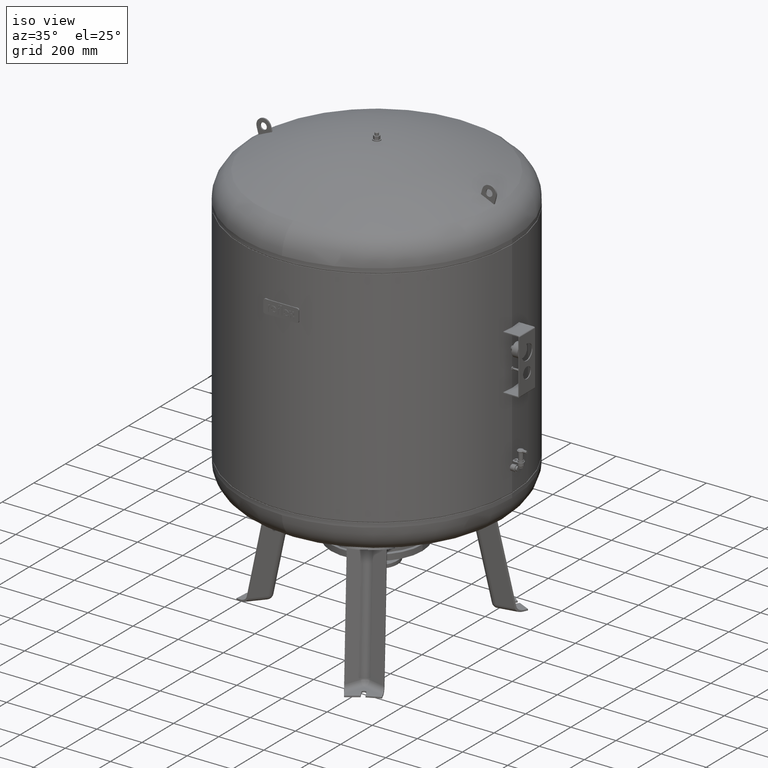
[diagram: clean part render]
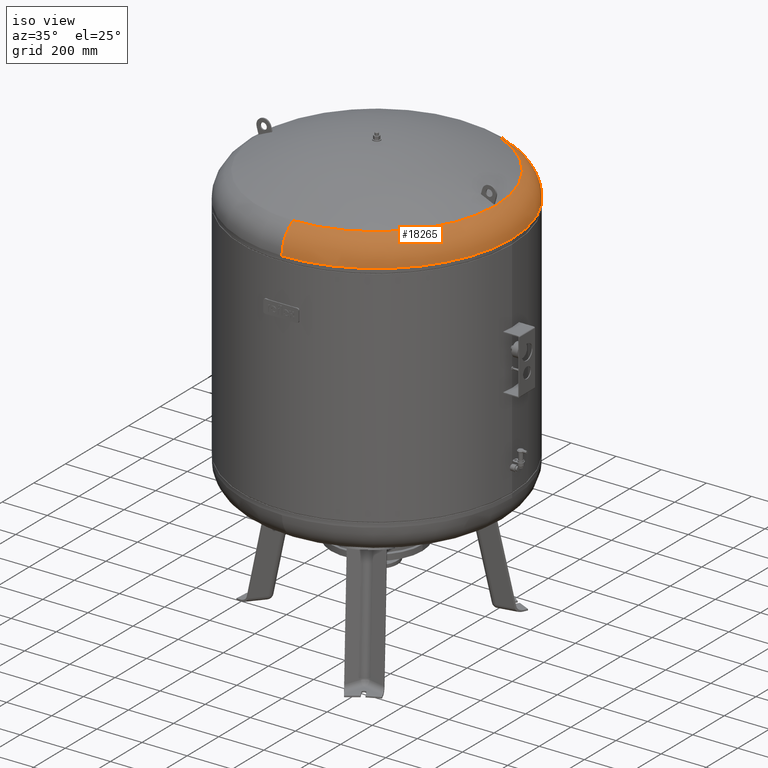
[diagram: same view with one face highlighted and labeled with its STEP entity id]
A machine part, iso view. The second image highlights one B-rep face of the part: STEP entity #18265.
In plain terms, the highlighted toroidal blend (fillet) surface has major radius 473 mm and minor (blend) radius 127 mm.
Its self-contained STEP definition (entity closure, byte-faithful):
#18170=CARTESIAN_POINT('',(600.0,-4.336858E-014,1732.912457433727700));
#18171=VERTEX_POINT('',#18170);
#18195=CARTESIAN_POINT('',(1.156183E-013,600.0,1732.912457433727700));
#18196=VERTEX_POINT('',#18195);
#18204=CARTESIAN_POINT('',(6.604942E-015,-4.336858E-014,1732.912457433727700));
#18205=DIRECTION('',(0.0,0.0,-1.0));
#18206=DIRECTION('',(1.0,0.0,0.0));
#18207=AXIS2_PLACEMENT_3D('',#18204,#18205,#18206);
#18208=CIRCLE('',#18207,600.0);
#18209=EDGE_CURVE('',#18196,#18171,#18208,.T.);
#18214=CARTESIAN_POINT('',(4.214189E-014,-4.336858E-014,1732.912457433727700));
#18215=DIRECTION('',(2.797667E-017,-1.836970E-016,-1.0));
#18216=DIRECTION('',(0.0,-1.0,0.0));
#18217=AXIS2_PLACEMENT_3D('',#18214,#18215,#18216);
#18218=TOROIDAL_SURFACE('',#18217,472.999999999999890,127.000000000000010);
#18219=CARTESIAN_POINT('',(4.214189E-014,-600.0,1732.912457433727700));
#18220=VERTEX_POINT('',#18219);
#18221=CARTESIAN_POINT('',(3.894773E-014,-528.621296296296240,1847.084570483805000));
#18222=VERTEX_POINT('',#18221);
#18223=CARTESIAN_POINT('',(4.214189E-014,-472.999999999999940,1732.912457433727700));
#18224=DIRECTION('',(-1.0,0.0,0.0));
#18225=DIRECTION('',(0.0,-1.0,0.0));
#18226=AXIS2_PLACEMENT_3D('',#18223,#18224,#18225);
#18227=CIRCLE('',#18226,127.000000000000010);
#18228=EDGE_CURVE('',#18220,#18222,#18227,.T.);
#18229=ORIENTED_EDGE('',*,*,#18228,.F.);
#18230=CARTESIAN_POINT('',(6.604942E-015,-4.336858E-014,1732.912457433727700));
#18231=DIRECTION('',(0.0,0.0,-1.0));
#18232=DIRECTION('',(1.0,0.0,0.0));
#18233=AXIS2_PLACEMENT_3D('',#18230,#18231,#18232);
#18234=CIRCLE('',#18233,600.0);
#18235=EDGE_CURVE('',#18171,#18220,#18234,.T.);
#18236=ORIENTED_EDGE('',*,*,#18235,.F.);
#18237=ORIENTED_EDGE('',*,*,#18209,.F.);
#18238=CARTESIAN_POINT('',(1.036830E-013,528.621296296296240,1847.084570483805000));
#18239=VERTEX_POINT('',#18238);
#18240=CARTESIAN_POINT('',(1.000658E-013,472.999999999999830,1732.912457433727700));
#18241=DIRECTION('',(1.0,0.0,0.0));
#18242=DIRECTION('',(0.0,1.0,0.0));
#18243=AXIS2_PLACEMENT_3D('',#18240,#18241,#18242);
#18244=CIRCLE('',#18243,127.000000000000010);
#18245=EDGE_CURVE('',#18196,#18239,#18244,.T.);
#18246=ORIENTED_EDGE('',*,*,#18245,.T.);
#18247=CARTESIAN_POINT('',(528.621296296296240,-2.239550E-014,1847.084570483805000));
#18248=VERTEX_POINT('',#18247);
#18249=CARTESIAN_POINT('',(3.410787E-015,-2.239550E-014,1847.084570483805000));
#18250=DIRECTION('',(0.0,0.0,-1.0));
#18251=DIRECTION('',(1.0,0.0,0.0));
#18252=AXIS2_PLACEMENT_3D('',#18249,#18250,#18251);
#18253=CIRCLE('',#18252,528.621296296296240);
#18254=EDGE_CURVE('',#18239,#18248,#18253,.T.);
#18255=ORIENTED_EDGE('',*,*,#18254,.T.);
#18256=CARTESIAN_POINT('',(3.410787E-015,-2.239550E-014,1847.084570483805000));
#18257=DIRECTION('',(0.0,0.0,-1.0));
#18258=DIRECTION('',(1.0,0.0,0.0));
#18259=AXIS2_PLACEMENT_3D('',#18256,#18257,#18258);
#18260=CIRCLE('',#18259,528.621296296296240);
#18261=EDGE_CURVE('',#18248,#18222,#18260,.T.);
#18262=ORIENTED_EDGE('',*,*,#18261,.T.);
#18263=EDGE_LOOP('',(#18229,#18236,#18237,#18246,#18255,#18262));
#18264=FACE_OUTER_BOUND('',#18263,.T.);
#18265=ADVANCED_FACE('',(#18264),#18218,.T.);